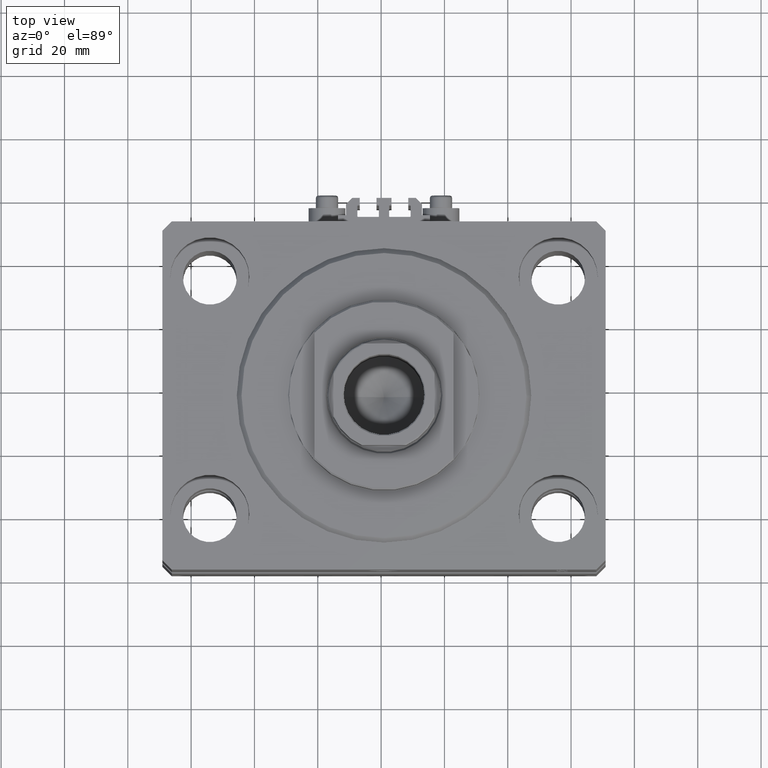
[diagram: clean part render]
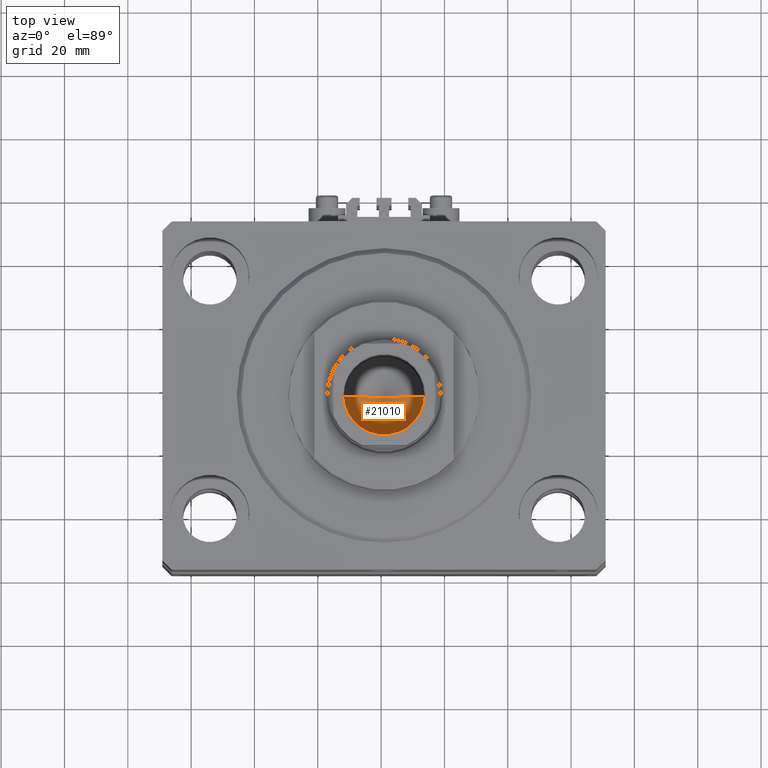
[diagram: same view with one face highlighted and labeled with its STEP entity id]
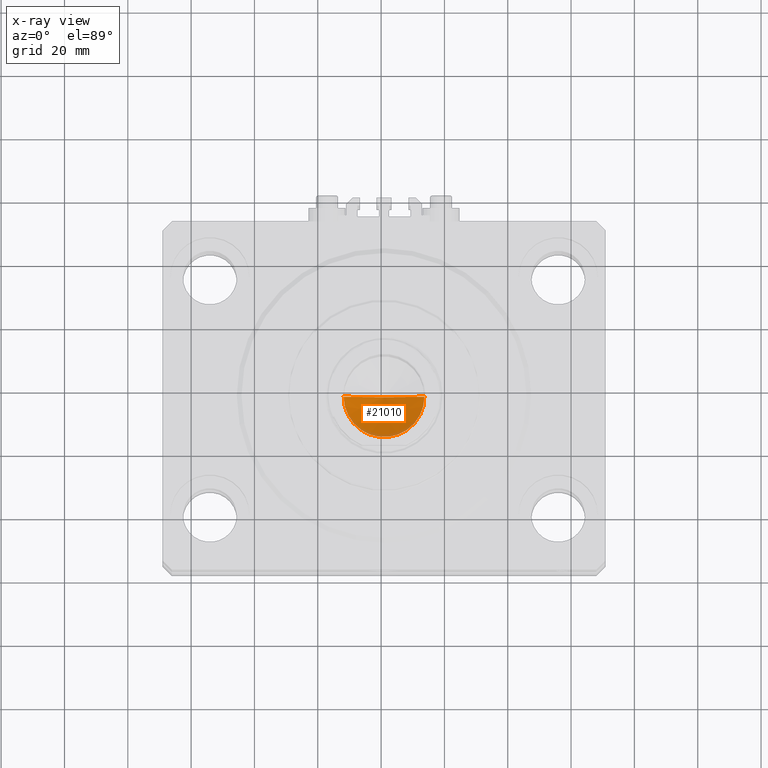
[diagram: x-ray of the same camera — body ghosted, the highlighted face saturated]
A machine part, top view. The second image highlights one B-rep face of the part: STEP entity #21010.
The next image is the same camera in x-ray: the body ghosted, the highlighted face saturated — about 8% of this face is hidden behind the body in this view.
In plain terms, the highlighted conical surface has half-angle 59 deg.
Its self-contained STEP definition (entity closure, byte-faithful):
#774 = DIRECTION ( 'NONE',  ( 1.000000000000000000, 0.000000000000000000, 0.000000000000000000 ) ) ;
#1012 = CARTESIAN_POINT ( 'NONE',  ( -12.74999999999999112, 1.561424668912874125E-15, 70.00000000000000000 ) ) ;
#2122 = EDGE_LOOP ( 'NONE', ( #28709, #6156, #43055 ) ) ;
#4503 = CARTESIAN_POINT ( 'NONE',  ( 0.000000000000000000, 0.000000000000000000, 70.00000000000000000 ) ) ;
#6156 = ORIENTED_EDGE ( 'NONE', *, *, #29205, .T. ) ;
#6801 = CARTESIAN_POINT ( 'NONE',  ( -12.74999999999999112, 1.561424668912874125E-15, 70.00000000000000000 ) ) ;
#8490 = DIRECTION ( 'NONE',  ( 1.000000000000000000, 0.000000000000000000, 0.000000000000000000 ) ) ;
#8504 = CARTESIAN_POINT ( 'NONE',  ( 0.000000000000000000, 0.000000000000000000, 70.00000000000000000 ) ) ;
#10479 = VECTOR ( 'NONE', #37483, 1000.000000000000000 ) ;
#12185 = VERTEX_POINT ( 'NONE', #44318 ) ;
#12603 = CONICAL_SURFACE ( 'NONE', #17401, 12.74999999999999112, 1.029744258676653423 ) ;
#17401 = AXIS2_PLACEMENT_3D ( 'NONE', #8504, #38709, #774 ) ;
#21010 = ADVANCED_FACE ( 'NONE', ( #47165 ), #12603, .F. ) ;
#21782 = DIRECTION ( 'NONE',  ( 0.8571673007021117785, 0.000000000000000000, 0.5150380749100550437 ) ) ;
#22025 = LINE ( 'NONE', #45427, #28062 ) ;
#26478 = CARTESIAN_POINT ( 'NONE',  ( 12.74999999999999112, 0.000000000000000000, 70.00000000000000000 ) ) ;
#27269 = VERTEX_POINT ( 'NONE', #26478 ) ;
#28023 = CIRCLE ( 'NONE', #30518, 12.74999999999999112 ) ;
#28062 = VECTOR ( 'NONE', #21782, 1000.000000000000000 ) ;
#28709 = ORIENTED_EDGE ( 'NONE', *, *, #30442, .F. ) ;
#29205 = EDGE_CURVE ( 'NONE', #12185, #48373, #34233, .T. ) ;
#30442 = EDGE_CURVE ( 'NONE', #12185, #27269, #22025, .T. ) ;
#30518 = AXIS2_PLACEMENT_3D ( 'NONE', #4503, #41941, #8490 ) ;
#34233 = LINE ( 'NONE', #6801, #10479 ) ;
#37483 = DIRECTION ( 'NONE',  ( -0.8571673007021117785, 1.049727191138617956E-16, 0.5150380749100550437 ) ) ;
#38709 = DIRECTION ( 'NONE',  ( -0.000000000000000000, -0.000000000000000000, 1.000000000000000000 ) ) ;
#41941 = DIRECTION ( 'NONE',  ( -0.000000000000000000, -0.000000000000000000, 1.000000000000000000 ) ) ;
#43055 = ORIENTED_EDGE ( 'NONE', *, *, #46081, .T. ) ;
#44318 = CARTESIAN_POINT ( 'NONE',  ( -1.307202896762960287E-14, 0.000000000000000000, 62.33902710739860709 ) ) ;
#45427 = CARTESIAN_POINT ( 'NONE',  ( 12.74999999999999112, 0.000000000000000000, 70.00000000000000000 ) ) ;
#46081 = EDGE_CURVE ( 'NONE', #48373, #27269, #28023, .T. ) ;
#47165 = FACE_OUTER_BOUND ( 'NONE', #2122, .T. ) ;
#48373 = VERTEX_POINT ( 'NONE', #1012 ) ;